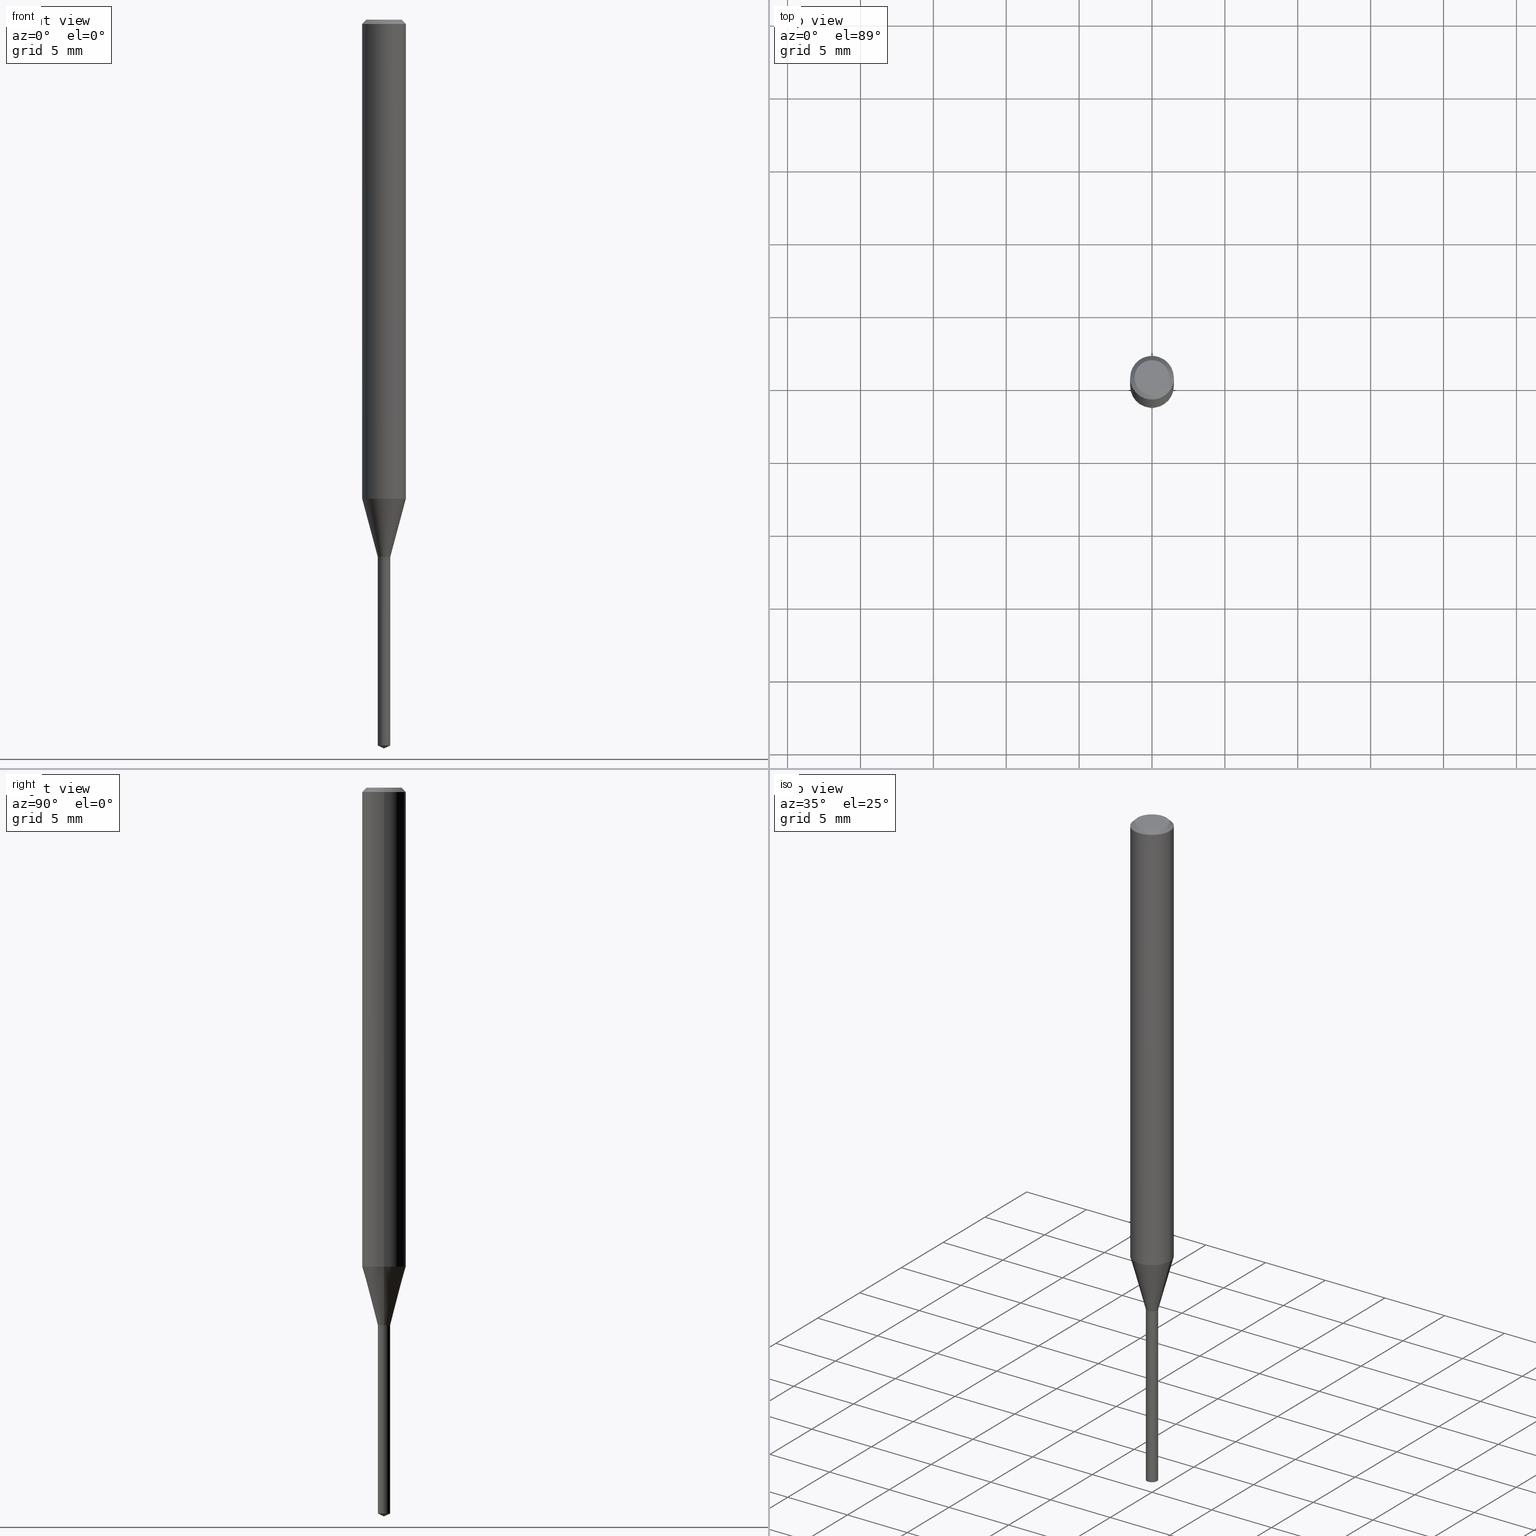
[diagram: canonical four-view strip — front | top / right | iso, engineering-drawing reading convention]
A machine part, canonical four-view strip (front | top / right | iso — engineering-drawing reading convention). The complete STEP part file that produces these views, byte-faithful:
ISO-10303-21;
HEADER;
FILE_DESCRIPTION (( 'STEP AP203' ),
    '1' );
FILE_NAME ('07463.STEP',
    '2024-04-23T21:43:20',
    ( '' ),
    ( '' ),
    'SwSTEP 2.0',
    'SolidWorks 2023',
    '' );
FILE_SCHEMA (( 'CONFIG_CONTROL_DESIGN' ));
ENDSEC;

DATA;
#1 = CARTESIAN_POINT ( 'NONE',  ( 3.562314409969888354E-29, -5.086040866292809657E-15, -1.456699999999999884 ) ) ;
#2 = APPROVAL_DATE_TIME ( #412, #70 ) ;
#3 = PRODUCT_DEFINITION_SHAPE ( 'NONE', 'NONE',  #370 ) ;
#4 = AXIS2_PLACEMENT_3D ( 'NONE', #34, #79, #190 ) ;
#5 = DIRECTION ( 'NONE',  ( 1.000000000000000000, -6.982962677686258033E-15, 0.000000000000000000 ) ) ;
#6 = CARTESIAN_POINT ( 'NONE',  ( -0.01675000000000000100, -4.967024958052992573E-15, -1.456699999999999884 ) ) ;
#7 = VERTEX_POINT ( 'NONE', #148 ) ;
#8 = FACE_OUTER_BOUND ( 'NONE', #213, .T. ) ;
#9 = VECTOR ( 'NONE', #57, 39.37007874015748143 ) ;
#10 = ORIENTED_EDGE ( 'NONE', *, *, #39, .F. ) ;
#11 = CARTESIAN_POINT ( 'NONE',  ( 3.561091675566796113E-29, -5.084295125623389731E-15, -1.456200000000000161 ) ) ;
#12 = DIRECTION ( 'NONE',  ( 2.445468806185136597E-29, -3.491481338843145583E-15, -1.000000000000000000 ) ) ;
#13 = ORIENTED_EDGE ( 'NONE', *, *, #221, .F. ) ;
#14 = EDGE_CURVE ( 'NONE', #389, #421, #406, .T. ) ;
#15 = ORIENTED_EDGE ( 'NONE', *, *, #29, .F. ) ;
#16 = LINE ( 'NONE', #364, #255 ) ;
#17 = AXIS2_PLACEMENT_3D ( 'NONE', #87, #267, #136 ) ;
#18 = ORIENTED_EDGE ( 'NONE', *, *, #397, .F. ) ;
#19 = PERSON_AND_ORGANIZATION ( #106, #405 ) ;
#20 = ORIENTED_EDGE ( 'NONE', *, *, #360, .F. ) ;
#21 = DIRECTION ( 'NONE',  ( 1.000000000000000000, -6.982962677686270655E-15, 0.000000000000000000 ) ) ;
#22 = CARTESIAN_POINT ( 'NONE',  ( 3.164031300802735254E-29, -4.517398142363389348E-15, -1.293834250839836386 ) ) ;
#23 = CC_DESIGN_PERSON_AND_ORGANIZATION_ASSIGNMENT ( #282, #209, ( #212 ) ) ;
#24 = ORIENTED_EDGE ( 'NONE', *, *, #160, .T. ) ;
#25 = DIRECTION ( 'NONE',  ( -2.445468806185136597E-29, 3.491481338843145583E-15, 1.000000000000000000 ) ) ;
#26 = AXIS2_PLACEMENT_3D ( 'NONE', #178, #173, #149 ) ;
#27 = CARTESIAN_POINT ( 'NONE',  ( -0.05905000000000008159, 4.195754854663397395E-16, -2.904631170795525745E-30 ) ) ;
#28 = DATE_AND_TIME ( #244, #205 ) ;
#29 = EDGE_CURVE ( 'NONE', #325, #163, #32, .T. ) ;
#30 = LINE ( 'NONE', #151, #320 ) ;
#31 = CONICAL_SURFACE ( 'NONE', #150, 0.05905000000000000526, 0.7853981633974453924 ) ;
#32 = CIRCLE ( 'NONE', #85, 0.01675000000000004610 ) ;
#33 = EDGE_CURVE ( 'NONE', #92, #434, #154, .T. ) ;
#34 = CARTESIAN_POINT ( 'NONE',  ( 3.562314409969888354E-29, -5.086040866292809657E-15, -1.456699999999999884 ) ) ;
#35 = CC_DESIGN_DATE_AND_TIME_ASSIGNMENT ( #459, #343, ( #370 ) ) ;
#36 = CARTESIAN_POINT ( 'NONE',  ( 0.01675000000000004263, -5.201259750474635203E-15, -1.456200000000000161 ) ) ;
#37 = APPLICATION_PROTOCOL_DEFINITION ( 'international standard', 'config_control_design', 1994, #449 ) ;
#38 = DIRECTION ( 'NONE',  ( -2.445468806185136597E-29, 3.491481338843145583E-15, 1.000000000000000000 ) ) ;
#39 = EDGE_CURVE ( 'NONE', #277, #434, #361, .T. ) ;
#40 = CARTESIAN_POINT ( 'NONE',  ( 0.05905000000000015098, -4.929742088480765058E-15, -1.293834250839836386 ) ) ;
#41 = DIRECTION ( 'NONE',  ( 1.000000000000000000, -6.982962677686266711E-15, 0.000000000000000000 ) ) ;
#42 = CARTESIAN_POINT ( 'NONE',  ( -0.01675000000000004610, 1.190159082398171087E-16, -8.239216276176990208E-31 ) ) ;
#43 = AXIS2_PLACEMENT_3D ( 'NONE', #58, #247, #356 ) ;
#44 = FACE_OUTER_BOUND ( 'NONE', #344, .T. ) ;
#45 = EDGE_CURVE ( 'NONE', #251, #134, #157, .T. ) ;
#46 = DIMENSIONAL_EXPONENTS ( 1.000000000000000000, 0.000000000000000000, 0.000000000000000000, 0.000000000000000000, 0.000000000000000000, 0.000000000000000000, 0.000000000000000000 ) ;
#47 = CARTESIAN_POINT ( 'NONE',  ( -0.04724000000000000421, 3.504923541997677355E-16, -3.380025165670481712E-19 ) ) ;
#48 = ORIENTED_EDGE ( 'NONE', *, *, #472, .T. ) ;
#49 = ORIENTED_EDGE ( 'NONE', *, *, #45, .T. ) ;
#50 = DIRECTION ( 'NONE',  ( 1.000000000000000000, -6.982962677686265922E-15, 4.876176775795935793E-29 ) ) ;
#51 = ADVANCED_FACE ( 'NONE', ( #222 ), #68, .T. ) ;
#52 = ORIENTED_EDGE ( 'NONE', *, *, #217, .F. ) ;
#53 = FACE_OUTER_BOUND ( 'NONE', #392, .T. ) ;
#54 = CONICAL_SURFACE ( 'NONE', #393, 0.01625000000000000056, 0.7853981633978645016 ) ;
#55 = ORIENTED_EDGE ( 'NONE', *, *, #289, .T. ) ;
#56 = CC_DESIGN_PERSON_AND_ORGANIZATION_ASSIGNMENT ( #19, #473, ( #351 ) ) ;
#57 = DIRECTION ( 'NONE',  ( -0.2588190451025211281, 5.211531920934548675E-15, 0.9659258262890682012 ) ) ;
#58 = CARTESIAN_POINT ( 'NONE',  ( 3.164031300802735254E-29, -4.517398142363389348E-15, -1.293834250839836386 ) ) ;
#59 = AXIS2_PLACEMENT_3D ( 'NONE', #223, #78, #71 ) ;
#60 = COORDINATED_UNIVERSAL_TIME_OFFSET ( 5, 0, .BEHIND. ) ;
#61 = DIRECTION ( 'NONE',  ( -2.445468806185136597E-29, 3.491481338843145583E-15, 1.000000000000000000 ) ) ;
#62 = DIRECTION ( 'NONE',  ( 1.000000000000000000, -6.982962677686265922E-15, 4.876176775795935793E-29 ) ) ;
#63 = FACE_OUTER_BOUND ( 'NONE', #427, .T. ) ;
#64 = EDGE_CURVE ( 'NONE', #348, #434, #423, .T. ) ;
#65 = AXIS2_PLACEMENT_3D ( 'NONE', #22, #254, #327 ) ;
#66 = LOCAL_TIME ( 17, 43, 20.00000000000000000, #117 ) ;
#67 = DIRECTION ( 'NONE',  ( -2.445468806185136877E-29, 3.491481338843145188E-15, 1.000000000000000000 ) ) ;
#68 = CONICAL_SURFACE ( 'NONE', #143, 0.01625000000000000056, 0.7853981633978645016 ) ;
#69 = MANIFOLD_SOLID_BREP ( 'Body-Move/Copy2[1]', #297 ) ;
#70 = APPROVAL ( #323, 'UNSPECIFIED' ) ;
#71 = DIRECTION ( 'NONE',  ( 1.000000000000000000, -6.982962677686266711E-15, 4.876185090822587894E-29 ) ) ;
#72 = PERSON_AND_ORGANIZATION_ROLE ( 'creator' ) ;
#73 = DIRECTION ( 'NONE',  ( 1.000000000000000000, -6.982962677686267499E-15, 4.876176775795936353E-29 ) ) ;
#74 = ADVANCED_FACE ( 'NONE', ( #8 ), #75, .T. ) ;
#75 = CYLINDRICAL_SURFACE ( 'NONE', #4, 0.01675000000000000100 ) ;
#76 = CONICAL_SURFACE ( 'NONE', #94, 0.01675000000000004610, 0.2617993877991497964 ) ;
#77 = CARTESIAN_POINT ( 'NONE',  ( 0.000000000000000000, 0.000000000000000000, 0.000000000000000000 ) ) ;
#78 = DIRECTION ( 'NONE',  ( -2.445468806185136597E-29, 3.491481338843145583E-15, 1.000000000000000000 ) ) ;
#79 = DIRECTION ( 'NONE',  ( -2.445468806185136597E-29, 3.491481338843145583E-15, 1.000000000000000000 ) ) ;
#80 = EDGE_LOOP ( 'NONE', ( #401, #208 ) ) ;
#81 = CARTESIAN_POINT ( 'NONE',  ( 0.01675000000000000100, -6.962674890213296059E-15, -1.960689346725903892 ) ) ;
#82 = AXIS2_PLACEMENT_3D ( 'NONE', #77, #376, #331 ) ;
#83 = LOCAL_TIME ( 17, 43, 20.00000000000000000, #426 ) ;
#84 = EDGE_LOOP ( 'NONE', ( #316, #172, #147, #206 ) ) ;
#85 = AXIS2_PLACEMENT_3D ( 'NONE', #321, #108, #488 ) ;
#86 = CARTESIAN_POINT ( 'NONE',  ( -0.01675000000000004610, -4.957423384371174698E-15, -1.451699999999999990 ) ) ;
#87 = CARTESIAN_POINT ( 'NONE',  ( 3.562314409969888354E-29, -5.086040866292809657E-15, -1.456699999999999884 ) ) ;
#88 = ORIENTED_EDGE ( 'NONE', *, *, #289, .F. ) ;
#89 = EDGE_LOOP ( 'NONE', ( #425, #403, #381 ) ) ;
#90 = DIRECTION ( 'NONE',  ( 2.445468806185136597E-29, -3.491481338843145583E-15, -1.000000000000000000 ) ) ;
#91 = EDGE_CURVE ( 'NONE', #7, #197, #185, .T. ) ;
#92 = VERTEX_POINT ( 'NONE', #378 ) ;
#93 = EDGE_LOOP ( 'NONE', ( #165, #95, #279, #246 ) ) ;
#94 = AXIS2_PLACEMENT_3D ( 'NONE', #422, #126, #21 ) ;
#95 = ORIENTED_EDGE ( 'NONE', *, *, #187, .T. ) ;
#96 =( GEOMETRIC_REPRESENTATION_CONTEXT ( 3 ) GLOBAL_UNCERTAINTY_ASSIGNED_CONTEXT ( ( #257 ) ) GLOBAL_UNIT_ASSIGNED_CONTEXT ( ( #252, #214, #179 ) ) REPRESENTATION_CONTEXT ( 'NONE', 'WORKASPACE' ) );
#97 = LINE ( 'NONE', #444, #458 ) ;
#98 = VECTOR ( 'NONE', #174, 39.37007874015748143 ) ;
#99 = ORIENTED_EDGE ( 'NONE', *, *, #441, .T. ) ;
#100 =( LENGTH_UNIT ( ) NAMED_UNIT ( * ) SI_UNIT ( $, .METRE. ) );
#101 = DIRECTION ( 'NONE',  ( 1.000000000000000000, -6.982962677686268288E-15, 0.000000000000000000 ) ) ;
#102 = CARTESIAN_POINT ( 'NONE',  ( 4.813905344975441835E-29, -6.872981015512731707E-15, -1.968500000000000139 ) ) ;
#103 = ADVANCED_FACE ( 'NONE', ( #409 ), #335, .T. ) ;
#104 = DIRECTION ( 'NONE',  ( 0.2588190451025211281, 1.565188264969623940E-15, 0.9659258262890682012 ) ) ;
#105 = APPROVAL ( #235, 'UNSPECIFIED' ) ;
#106 = PERSON ( 'UNSPECIFIED', 'UNSPECIFIED', 'UNSPECIFIED', ('UNSPECIFIED'), ('UNSPECIFIED'), ('UNSPECIFIED') ) ;
#107 = CYLINDRICAL_SURFACE ( 'NONE', #231, 0.01675000000000004610 ) ;
#108 = DIRECTION ( 'NONE',  ( -2.445468806185136597E-29, 3.491481338843145583E-15, 1.000000000000000000 ) ) ;
#109 = ADVANCED_FACE ( 'NONE', ( #489 ), #259, .F. ) ;
#110 = CARTESIAN_POINT ( 'NONE',  ( 3.561091675566796113E-29, -5.084295125623389731E-15, -1.456200000000000161 ) ) ;
#111 = APPROVAL ( #451, 'UNSPECIFIED' ) ;
#112 = APPROVAL_DATE_TIME ( #337, #111 ) ;
#113 = CONICAL_SURFACE ( 'NONE', #350, 0.01675000000000004610, 0.2617993877991497964 ) ;
#114 = DIRECTION ( 'NONE',  ( -2.438088387897960049E-29, 3.491481338843145188E-15, 1.000000000000000000 ) ) ;
#115 = CALENDAR_DATE ( 2024, 23, 4 ) ;
#116 = CARTESIAN_POINT ( 'NONE',  ( 4.813905344975441835E-29, -6.872981015512731707E-15, -1.968500000000000139 ) ) ;
#117 = COORDINATED_UNIVERSAL_TIME_OFFSET ( 5, 0, .BEHIND. ) ;
#118 = EDGE_CURVE ( 'NONE', #469, #348, #166, .T. ) ;
#119 = DIRECTION ( 'NONE',  ( -2.445468806185136597E-29, 3.491481338843145583E-15, 1.000000000000000000 ) ) ;
#120 = VECTOR ( 'NONE', #442, 39.37007874015748143 ) ;
#121 = CARTESIAN_POINT ( 'NONE',  ( 3.562314409969888354E-29, -5.086040866292809657E-15, -1.456699999999999884 ) ) ;
#122 = PERSON_AND_ORGANIZATION ( #106, #405 ) ;
#123 = CARTESIAN_POINT ( 'NONE',  ( 3.550087065938963142E-29, -5.068583459598594621E-15, -1.451699999999999990 ) ) ;
#124 = CARTESIAN_POINT ( 'NONE',  ( 0.000000000000000000, 0.000000000000000000, 0.000000000000000000 ) ) ;
#125 = VERTEX_POINT ( 'NONE', #155 ) ;
#126 = DIRECTION ( 'NONE',  ( -2.445468806185136597E-29, 3.491481338843145583E-15, 1.000000000000000000 ) ) ;
#127 = EDGE_CURVE ( 'NONE', #348, #469, #152, .T. ) ;
#128 = EDGE_LOOP ( 'NONE', ( #339, #48, #424 ) ) ;
#129 = FACE_OUTER_BOUND ( 'NONE', #84, .T. ) ;
#130 = DIRECTION ( 'NONE',  ( 0.7071067811868417818, -2.468850131085339140E-15, 0.7071067811862532526 ) ) ;
#131 = ORIENTED_EDGE ( 'NONE', *, *, #127, .T. ) ;
#132 = AXIS2_PLACEMENT_3D ( 'NONE', #258, #38, #156 ) ;
#133 = CARTESIAN_POINT ( 'NONE',  ( -0.01675000000000004263, -4.957423384371174698E-15, -1.456200000000000161 ) ) ;
#134 = VERTEX_POINT ( 'NONE', #36 ) ;
#135 = DIRECTION ( 'NONE',  ( -2.445468806185136597E-29, 3.491481338843145583E-15, 1.000000000000000000 ) ) ;
#136 = DIRECTION ( 'NONE',  ( 1.000000000000000000, -6.982962677686288799E-15, 0.000000000000000000 ) ) ;
#137 = PRODUCT_RELATED_PRODUCT_CATEGORY ( 'detail', '', ( #334 ) ) ;
#138 = VERTEX_POINT ( 'NONE', #40 ) ;
#139 = DIRECTION ( 'NONE',  ( 1.000000000000000000, -6.982962677686288799E-15, 0.000000000000000000 ) ) ;
#140 = ORIENTED_EDGE ( 'NONE', *, *, #490, .T. ) ;
#141 = AXIS2_PLACEMENT_3D ( 'NONE', #269, #12, #276 ) ;
#142 = DIRECTION ( 'NONE',  ( -2.445468806185136877E-29, 3.491481338843145188E-15, 1.000000000000000000 ) ) ;
#143 = AXIS2_PLACEMENT_3D ( 'NONE', #1, #455, #256 ) ;
#144 = ORIENTED_EDGE ( 'NONE', *, *, #293, .F. ) ;
#145 = EDGE_CURVE ( 'NONE', #197, #443, #186, .T. ) ;
#146 = CARTESIAN_POINT ( 'NONE',  ( 2.888098660104664642E-31, -4.123439461173780879E-17, -0.01181000000000007565 ) ) ;
#147 = ORIENTED_EDGE ( 'NONE', *, *, #64, .T. ) ;
#148 = CARTESIAN_POINT ( 'NONE',  ( 4.813905344975441835E-29, -6.872981015512731707E-15, -1.968500000000000139 ) ) ;
#149 = DIRECTION ( 'NONE',  ( -1.000000000000000000, 6.982962677686265922E-15, -4.876176775795935793E-29 ) ) ;
#150 = AXIS2_PLACEMENT_3D ( 'NONE', #203, #90, #264 ) ;
#151 = CARTESIAN_POINT ( 'NONE',  ( 0.01675000000000004610, -5.185548084449840093E-15, -1.451699999999999990 ) ) ;
#152 = CIRCLE ( 'NONE', #132, 0.04724000000000000421 ) ;
#153 = AXIS2_PLACEMENT_3D ( 'NONE', #452, #377, #338 ) ;
#154 = LINE ( 'NONE', #27, #352 ) ;
#155 = CARTESIAN_POINT ( 'NONE',  ( 0.01675000000000000100, -5.203005491144055129E-15, -1.456699999999999884 ) ) ;
#156 = DIRECTION ( 'NONE',  ( 1.000000000000000000, -6.982962677686266711E-15, 4.876185090822587894E-29 ) ) ;
#157 = CIRCLE ( 'NONE', #215, 0.01675000000000004263 ) ;
#158 = ADVANCED_FACE ( 'NONE', ( #294 ), #298, .T. ) ;
#159 = CARTESIAN_POINT ( 'NONE',  ( 0.01675000000000004610, -5.185548084449840093E-15, -1.451699999999999990 ) ) ;
#160 = EDGE_CURVE ( 'NONE', #421, #389, #291, .T. ) ;
#161 = FACE_OUTER_BOUND ( 'NONE', #89, .T. ) ;
#162 = CARTESIAN_POINT ( 'NONE',  ( 4.794804636037711308E-29, -6.845710265362052164E-15, -1.960689346725903892 ) ) ;
#163 = VERTEX_POINT ( 'NONE', #159 ) ;
#164 = CARTESIAN_POINT ( 'NONE',  ( 0.05905000000000008159, -4.123439461173746736E-16, 2.879382386107504424E-30 ) ) ;
#165 = ORIENTED_EDGE ( 'NONE', *, *, #145, .F. ) ;
#166 = CIRCLE ( 'NONE', #59, 0.04724000000000000421 ) ;
#167 = DATE_AND_TIME ( #192, #270 ) ;
#168 = ORIENTED_EDGE ( 'NONE', *, *, #14, .T. ) ;
#169 = AXIS2_PLACEMENT_3D ( 'NONE', #454, #371, #460 ) ;
#170 = DIRECTION ( 'NONE',  ( -2.445468806185136597E-29, 3.491481338843145583E-15, 1.000000000000000000 ) ) ;
#171 = PERSON_AND_ORGANIZATION_ROLE ( 'design_supplier' ) ;
#172 = ORIENTED_EDGE ( 'NONE', *, *, #127, .F. ) ;
#173 = DIRECTION ( 'NONE',  ( 2.438088387897960049E-29, -3.491481338843145188E-15, -1.000000000000000000 ) ) ;
#174 = DIRECTION ( 'NONE',  ( -0.7071067811868417818, 7.493145998871417545E-15, 0.7071067811862532526 ) ) ;
#175 = ORIENTED_EDGE ( 'NONE', *, *, #118, .T. ) ;
#176 = ADVANCED_FACE ( 'NONE', ( #415 ), #340, .T. ) ;
#177 = AXIS2_PLACEMENT_3D ( 'NONE', #431, #271, #386 ) ;
#178 = CARTESIAN_POINT ( 'NONE',  ( 4.132873053354867254E-48, -5.900647395337818946E-34, -1.690012582823346072E-19 ) ) ;
#179 =( NAMED_UNIT ( * ) SI_UNIT ( $, .STERADIAN. ) SOLID_ANGLE_UNIT ( ) );
#180 = ADVANCED_FACE ( 'NONE', ( #161 ), #220, .T. ) ;
#181 = CYLINDRICAL_SURFACE ( 'NONE', #484, 0.01675000000000000100 ) ;
#182 = AXIS2_PLACEMENT_3D ( 'NONE', #146, #317, #470 ) ;
#183 = CLOSED_SHELL ( 'NONE', ( #51, #342, #158, #268, #383, #366, #299, #176, #278, #445, #189, #292 ) ) ;
#184 = AXIS2_PLACEMENT_3D ( 'NONE', #121, #114, #262 ) ;
#185 = LINE ( 'NONE', #116, #272 ) ;
#186 = LINE ( 'NONE', #6, #418 ) ;
#187 = EDGE_CURVE ( 'NONE', #197, #202, #404, .T. ) ;
#188 = DIRECTION ( 'NONE',  ( -2.445468806185136597E-29, 3.491481338843145583E-15, 1.000000000000000000 ) ) ;
#189 = ADVANCED_FACE ( 'NONE', ( #456 ), #305, .F. ) ;
#190 = DIRECTION ( 'NONE',  ( 1.000000000000000000, -6.982962677686288799E-15, 0.000000000000000000 ) ) ;
#191 = CARTESIAN_POINT ( 'NONE',  ( 0.000000000000000000, 0.000000000000000000, 0.000000000000000000 ) ) ;
#192 = CALENDAR_DATE ( 2024, 23, 4 ) ;
#193 = FACE_OUTER_BOUND ( 'NONE', #432, .T. ) ;
#194 = AXIS2_PLACEMENT_3D ( 'NONE', #191, #411, #73 ) ;
#195 = VECTOR ( 'NONE', #420, 39.37007874015748143 ) ;
#196 = CALENDAR_DATE ( 2024, 23, 4 ) ;
#197 = VERTEX_POINT ( 'NONE', #468 ) ;
#198 = CARTESIAN_POINT ( 'NONE',  ( 0.01625000000000000056, -5.199514009805211333E-15, -1.456699999999999884 ) ) ;
#199 = LINE ( 'NONE', #466, #263 ) ;
#200 = DESIGN_CONTEXT ( 'detailed design', #471, 'design' ) ;
#201 = EDGE_CURVE ( 'NONE', #443, #125, #416, .T. ) ;
#202 = VERTEX_POINT ( 'NONE', #81 ) ;
#203 = CARTESIAN_POINT ( 'NONE',  ( 2.888098660104664642E-31, -4.123439461173780879E-17, -0.01181000000000007565 ) ) ;
#204 = VECTOR ( 'NONE', #390, 39.37007874015748143 ) ;
#205 = LOCAL_TIME ( 17, 43, 20.00000000000000000, #60 ) ;
#206 = ORIENTED_EDGE ( 'NONE', *, *, #453, .T. ) ;
#207 = CIRCLE ( 'NONE', #182, 0.05905000000000000526 ) ;
#208 = ORIENTED_EDGE ( 'NONE', *, *, #201, .T. ) ;
#209 = PERSON_AND_ORGANIZATION_ROLE ( 'classification_officer' ) ;
#210 = EDGE_LOOP ( 'NONE', ( #20, #49, #240, #15 ) ) ;
#211 = FACE_OUTER_BOUND ( 'NONE', #93, .T. ) ;
#212 = SECURITY_CLASSIFICATION ( '', '', #433 ) ;
#213 = EDGE_LOOP ( 'NONE', ( #307, #315, #13, #311 ) ) ;
#214 =( NAMED_UNIT ( * ) PLANE_ANGLE_UNIT ( ) SI_UNIT ( $, .RADIAN. ) );
#215 = AXIS2_PLACEMENT_3D ( 'NONE', #110, #25, #398 ) ;
#216 = EDGE_LOOP ( 'NONE', ( #463, #362 ) ) ;
#217 = EDGE_CURVE ( 'NONE', #389, #134, #384, .T. ) ;
#218 = PLANE ( 'NONE',  #26 ) ;
#219 = AXIS2_PLACEMENT_3D ( 'NONE', #124, #300, #224 ) ;
#220 = CONICAL_SURFACE ( 'NONE', #153, 84.42940631927572781, 1.134464013796322224 ) ;
#221 = EDGE_CURVE ( 'NONE', #125, #443, #284, .T. ) ;
#222 = FACE_OUTER_BOUND ( 'NONE', #387, .T. ) ;
#223 = CARTESIAN_POINT ( 'NONE',  ( 8.265746106709734507E-48, -1.180129479067563789E-33, -3.380025165646692144E-19 ) ) ;
#224 = DIRECTION ( 'NONE',  ( 1.000000000000000000, -6.982962677686267499E-15, 4.876176775795936353E-29 ) ) ;
#225 = AXIS2_PLACEMENT_3D ( 'NONE', #336, #188, #5 ) ;
#226 = EDGE_CURVE ( 'NONE', #469, #277, #199, .T. ) ;
#227 = DIRECTION ( 'NONE',  ( -2.445468806185136597E-29, 3.491481338843145583E-15, 1.000000000000000000 ) ) ;
#228 = APPROVAL_ROLE ( '' ) ;
#229 = FACE_OUTER_BOUND ( 'NONE', #210, .T. ) ;
#230 = ORIENTED_EDGE ( 'NONE', *, *, #379, .F. ) ;
#231 = AXIS2_PLACEMENT_3D ( 'NONE', #288, #326, #62 ) ;
#232 = CC_DESIGN_APPROVAL ( #70, ( #212 ) ) ;
#233 = EDGE_LOOP ( 'NONE', ( #313, #140, #18, #354 ) ) ;
#234 = DIRECTION ( 'NONE',  ( -2.445468806185136597E-29, 3.491481338843145583E-15, 1.000000000000000000 ) ) ;
#235 = APPROVAL_STATUS ( 'not_yet_approved' ) ;
#236 = ORIENTED_EDGE ( 'NONE', *, *, #45, .F. ) ;
#237 = CARTESIAN_POINT ( 'NONE',  ( 0.000000000000000000, 0.000000000000000000, 0.000000000000000000 ) ) ;
#238 = ORIENTED_EDGE ( 'NONE', *, *, #490, .F. ) ;
#239 = CIRCLE ( 'NONE', #43, 0.05905000000000015098 ) ;
#240 = ORIENTED_EDGE ( 'NONE', *, *, #374, .T. ) ;
#241 = AXIS2_PLACEMENT_3D ( 'NONE', #319, #285, #139 ) ;
#242 = CARTESIAN_POINT ( 'NONE',  ( -0.01675000000000004610, -4.949567551358777537E-15, -1.451699999999999990 ) ) ;
#243 = EDGE_LOOP ( 'NONE', ( #478, #462, #10, #88 ) ) ;
#244 = CALENDAR_DATE ( 2024, 23, 4 ) ;
#245 = CC_DESIGN_PERSON_AND_ORGANIZATION_ASSIGNMENT ( #368, #329, ( #334 ) ) ;
#246 = ORIENTED_EDGE ( 'NONE', *, *, #201, .F. ) ;
#247 = DIRECTION ( 'NONE',  ( -2.445468806185136597E-29, 3.491481338843145583E-15, 1.000000000000000000 ) ) ;
#248 = DIRECTION ( 'NONE',  ( 0.7071067811865454633, -7.319954787623248157E-15, -0.7071067811865495711 ) ) ;
#249 = ORIENTED_EDGE ( 'NONE', *, *, #448, .F. ) ;
#250 = CARTESIAN_POINT ( 'NONE',  ( 2.888098660104664642E-31, -4.123439461173780879E-17, -0.01181000000000007565 ) ) ;
#251 = VERTEX_POINT ( 'NONE', #133 ) ;
#252 =( CONVERSION_BASED_UNIT ( 'INCH', #399 ) LENGTH_UNIT ( ) NAMED_UNIT ( #46 ) );
#253 = AXIS2_PLACEMENT_3D ( 'NONE', #330, #119, #41 ) ;
#254 = DIRECTION ( 'NONE',  ( -2.445468806185136597E-29, 3.491481338843145583E-15, 1.000000000000000000 ) ) ;
#255 = VECTOR ( 'NONE', #396, 39.37007874015748143 ) ;
#256 = DIRECTION ( 'NONE',  ( 1.000000000000000000, -6.982962677686258033E-15, 0.000000000000000000 ) ) ;
#257 = UNCERTAINTY_MEASURE_WITH_UNIT (LENGTH_MEASURE( 1.000000000000000082E-05 ), #252, 'distance_accuracy_value', 'NONE');
#258 = CARTESIAN_POINT ( 'NONE',  ( 8.265746106709734507E-48, -1.180129479067563789E-33, -3.380025165646692144E-19 ) ) ;
#259 = PLANE ( 'NONE',  #169 ) ;
#260 = APPROVAL_ROLE ( '' ) ;
#261 = CIRCLE ( 'NONE', #306, 0.01675000000000004263 ) ;
#262 = DIRECTION ( 'NONE',  ( 1.000000000000000000, -6.982962677686265922E-15, 4.876176775795935793E-29 ) ) ;
#263 = VECTOR ( 'NONE', #248, 39.37007874015748143 ) ;
#264 = DIRECTION ( 'NONE',  ( -1.000000000000000000, 6.982962677686265922E-15, 0.000000000000000000 ) ) ;
#265 = CARTESIAN_POINT ( 'NONE',  ( -0.05905000000000000526, 3.711095515056362547E-16, -0.01181000000000007565 ) ) ;
#266 = ORIENTED_EDGE ( 'NONE', *, *, #360, .T. ) ;
#267 = DIRECTION ( 'NONE',  ( -2.445468806185136597E-29, 3.491481338843145583E-15, 1.000000000000000000 ) ) ;
#268 = ADVANCED_FACE ( 'NONE', ( #467 ), #76, .T. ) ;
#269 = CARTESIAN_POINT ( 'NONE',  ( 2.888098660104664642E-31, -4.123439461173780879E-17, -0.01181000000000007565 ) ) ;
#270 = LOCAL_TIME ( 17, 43, 20.00000000000000000, #388 ) ;
#271 = DIRECTION ( 'NONE',  ( -2.445468806185136597E-29, 3.491481338843145583E-15, 1.000000000000000000 ) ) ;
#272 = VECTOR ( 'NONE', #373, 39.37007874015748143 ) ;
#273 = ORIENTED_EDGE ( 'NONE', *, *, #226, .T. ) ;
#274 = CARTESIAN_POINT ( 'NONE',  ( 3.550087065938963142E-29, -5.068583459598594621E-15, -1.451699999999999990 ) ) ;
#275 = ORIENTED_EDGE ( 'NONE', *, *, #217, .T. ) ;
#276 = DIRECTION ( 'NONE',  ( -1.000000000000000000, 6.982962677686265922E-15, 0.000000000000000000 ) ) ;
#277 = VERTEX_POINT ( 'NONE', #312 ) ;
#278 = ADVANCED_FACE ( 'NONE', ( #129 ), #328, .T. ) ;
#279 = ORIENTED_EDGE ( 'NONE', *, *, #479, .T. ) ;
#280 = LINE ( 'NONE', #102, #120 ) ;
#281 = ORIENTED_EDGE ( 'NONE', *, *, #453, .F. ) ;
#282 = PERSON_AND_ORGANIZATION ( #106, #405 ) ;
#283 = ORIENTED_EDGE ( 'NONE', *, *, #64, .F. ) ;
#284 = CIRCLE ( 'NONE', #177, 0.01675000000000000100 ) ;
#285 = DIRECTION ( 'NONE',  ( -2.445468806185136597E-29, 3.491481338843145583E-15, 1.000000000000000000 ) ) ;
#286 = ORIENTED_EDGE ( 'NONE', *, *, #379, .T. ) ;
#287 = CARTESIAN_POINT ( 'NONE',  ( 3.562314409969888354E-29, -5.086040866292809657E-15, -1.456699999999999884 ) ) ;
#288 = CARTESIAN_POINT ( 'NONE',  ( 0.000000000000000000, 0.000000000000000000, 0.000000000000000000 ) ) ;
#289 = EDGE_CURVE ( 'NONE', #138, #277, #304, .T. ) ;
#290 = LINE ( 'NONE', #447, #98 ) ;
#291 = CIRCLE ( 'NONE', #225, 0.01625000000000000056 ) ;
#292 = ADVANCED_FACE ( 'NONE', ( #44 ), #54, .T. ) ;
#293 = EDGE_CURVE ( 'NONE', #163, #325, #436, .T. ) ;
#294 = FACE_OUTER_BOUND ( 'NONE', #243, .T. ) ;
#295 = APPROVAL_ROLE ( '' ) ;
#296 = MECHANICAL_CONTEXT ( 'NONE', #449, 'mechanical' ) ;
#297 = CLOSED_SHELL ( 'NONE', ( #74, #180, #103, #457, #109 ) ) ;
#298 = CYLINDRICAL_SURFACE ( 'NONE', #194, 0.05905000000000008159 ) ;
#299 = ADVANCED_FACE ( 'NONE', ( #193 ), #113, .T. ) ;
#300 = DIRECTION ( 'NONE',  ( -2.445468806185136597E-29, 3.491481338843145583E-15, 1.000000000000000000 ) ) ;
#301 = ADVANCED_BREP_SHAPE_REPRESENTATION ( '07463', ( #69, #408, #82 ), #96 ) ;
#302 = DIRECTION ( 'NONE',  ( 1.000000000000000000, -6.982962677686288799E-15, 0.000000000000000000 ) ) ;
#303 = VECTOR ( 'NONE', #130, 39.37007874015748143 ) ;
#304 = LINE ( 'NONE', #164, #419 ) ;
#305 = PLANE ( 'NONE',  #184 ) ;
#306 = AXIS2_PLACEMENT_3D ( 'NONE', #11, #234, #385 ) ;
#307 = ORIENTED_EDGE ( 'NONE', *, *, #464, .T. ) ;
#308 = DIRECTION ( 'NONE',  ( -2.445468806185136877E-29, 3.491481338843145188E-15, 1.000000000000000000 ) ) ;
#309 = ORIENTED_EDGE ( 'NONE', *, *, #347, .T. ) ;
#310 = DIRECTION ( 'NONE',  ( 1.000000000000000000, -6.982962677686270655E-15, 0.000000000000000000 ) ) ;
#311 = ORIENTED_EDGE ( 'NONE', *, *, #479, .F. ) ;
#312 = CARTESIAN_POINT ( 'NONE',  ( 0.05905000000000000526, -4.535783407291119586E-16, -0.01181000000000007565 ) ) ;
#313 = ORIENTED_EDGE ( 'NONE', *, *, #293, .T. ) ;
#314 = APPROVAL_DATE_TIME ( #167, #105 ) ;
#315 = ORIENTED_EDGE ( 'NONE', *, *, #145, .T. ) ;
#316 = ORIENTED_EDGE ( 'NONE', *, *, #226, .F. ) ;
#317 = DIRECTION ( 'NONE',  ( -2.445468806185136597E-29, 3.491481338843145583E-15, 1.000000000000000000 ) ) ;
#318 = PERSON_AND_ORGANIZATION ( #106, #405 ) ;
#319 = CARTESIAN_POINT ( 'NONE',  ( 4.794804636037711308E-29, -6.845710265362052164E-15, -1.960689346725903892 ) ) ;
#320 = VECTOR ( 'NONE', #104, 39.37007874015748143 ) ;
#321 = CARTESIAN_POINT ( 'NONE',  ( 3.550087065938963142E-29, -5.068583459598594621E-15, -1.451699999999999990 ) ) ;
#322 = APPROVAL_PERSON_ORGANIZATION ( #122, #105, #228 ) ;
#323 = APPROVAL_STATUS ( 'not_yet_approved' ) ;
#324 = CARTESIAN_POINT ( 'NONE',  ( 3.562314409969888354E-29, -5.086040866292809657E-15, -1.456699999999999884 ) ) ;
#325 = VERTEX_POINT ( 'NONE', #86 ) ;
#326 = DIRECTION ( 'NONE',  ( -2.445468806185136597E-29, 3.491481338843145583E-15, 1.000000000000000000 ) ) ;
#327 = DIRECTION ( 'NONE',  ( 1.000000000000000000, -6.982962677686271444E-15, 0.000000000000000000 ) ) ;
#328 = CONICAL_SURFACE ( 'NONE', #141, 0.05905000000000000526, 0.7853981633974453924 ) ;
#329 = PERSON_AND_ORGANIZATION_ROLE ( 'design_owner' ) ;
#330 = CARTESIAN_POINT ( 'NONE',  ( -9.146439411113230710E-28, 1.305869142145323662E-13, 37.40157874015748263 ) ) ;
#331 = DIRECTION ( 'NONE',  ( 1.000000000000000000, 0.000000000000000000, 0.000000000000000000 ) ) ;
#332 = DIRECTION ( 'NONE',  ( -2.445468806185136877E-29, 3.491481338843145188E-15, 1.000000000000000000 ) ) ;
#333 = CC_DESIGN_APPROVAL ( #105, ( #351 ) ) ;
#334 = PRODUCT ( '07463', '07463', '', ( #296 ) ) ;
#335 = CONICAL_SURFACE ( 'NONE', #253, 84.42940631927572781, 1.134464013796322224 ) ;
#336 = CARTESIAN_POINT ( 'NONE',  ( 3.562314409969888354E-29, -5.086040866292809657E-15, -1.456699999999999884 ) ) ;
#337 = DATE_AND_TIME ( #115, #375 ) ;
#338 = DIRECTION ( 'NONE',  ( 1.000000000000000000, -6.982962677686266711E-15, 0.000000000000000000 ) ) ;
#339 = ORIENTED_EDGE ( 'NONE', *, *, #91, .F. ) ;
#340 = CYLINDRICAL_SURFACE ( 'NONE', #219, 0.05905000000000008159 ) ;
#341 = ORIENTED_EDGE ( 'NONE', *, *, #29, .T. ) ;
#342 = ADVANCED_FACE ( 'NONE', ( #53 ), #31, .T. ) ;
#343 = DATE_TIME_ROLE ( 'creation_date' ) ;
#344 = EDGE_LOOP ( 'NONE', ( #249, #24, #275, #236 ) ) ;
#345 = DIRECTION ( 'NONE',  ( -2.445468806185136597E-29, 3.491481338843145583E-15, 1.000000000000000000 ) ) ;
#346 = LINE ( 'NONE', #42, #204 ) ;
#347 = EDGE_CURVE ( 'NONE', #134, #251, #261, .T. ) ;
#348 = VERTEX_POINT ( 'NONE', #47 ) ;
#349 = CYLINDRICAL_SURFACE ( 'NONE', #482, 0.01675000000000004610 ) ;
#350 = AXIS2_PLACEMENT_3D ( 'NONE', #274, #135, #430 ) ;
#351 = PRODUCT_DEFINITION_FORMATION_WITH_SPECIFIED_SOURCE ( 'ANY', '', #334, .NOT_KNOWN. ) ;
#352 = VECTOR ( 'NONE', #67, 39.37007874015748143 ) ;
#353 = AXIS2_PLACEMENT_3D ( 'NONE', #123, #170, #310 ) ;
#354 = ORIENTED_EDGE ( 'NONE', *, *, #441, .F. ) ;
#355 = ORIENTED_EDGE ( 'NONE', *, *, #33, .F. ) ;
#356 = DIRECTION ( 'NONE',  ( 1.000000000000000000, -6.982962677686271444E-15, 0.000000000000000000 ) ) ;
#357 = PERSON_AND_ORGANIZATION ( #106, #405 ) ;
#358 = DIRECTION ( 'NONE',  ( 1.000000000000000000, -6.982962677686288799E-15, 0.000000000000000000 ) ) ;
#359 = APPROVAL_PERSON_ORGANIZATION ( #407, #111, #260 ) ;
#360 = EDGE_CURVE ( 'NONE', #251, #325, #346, .T. ) ;
#361 = CIRCLE ( 'NONE', #438, 0.05905000000000000526 ) ;
#362 = ORIENTED_EDGE ( 'NONE', *, *, #160, .F. ) ;
#363 = CC_DESIGN_PERSON_AND_ORGANIZATION_ASSIGNMENT ( #410, #72, ( #370 ) ) ;
#364 = CARTESIAN_POINT ( 'NONE',  ( 0.01675000000000004610, -1.169646248512452751E-16, 8.167596099458215014E-31 ) ) ;
#365 = CALENDAR_DATE ( 2024, 23, 4 ) ;
#366 = ADVANCED_FACE ( 'NONE', ( #229 ), #349, .T. ) ;
#367 = FACE_OUTER_BOUND ( 'NONE', #437, .T. ) ;
#368 = PERSON_AND_ORGANIZATION ( #106, #405 ) ;
#369 = CIRCLE ( 'NONE', #65, 0.05905000000000015098 ) ;
#370 = PRODUCT_DEFINITION ( 'UNKNOWN', '', #351, #200 ) ;
#371 = DIRECTION ( 'NONE',  ( 2.438088387897960049E-29, -3.491481338843145188E-15, -1.000000000000000000 ) ) ;
#372 = SHAPE_DEFINITION_REPRESENTATION ( #3, #301 ) ;
#373 = DIRECTION ( 'NONE',  ( -0.9063077870366533784, 7.915267918739014631E-15, 0.4226182617406921693 ) ) ;
#374 = EDGE_CURVE ( 'NONE', #134, #163, #16, .T. ) ;
#375 = LOCAL_TIME ( 17, 43, 20.00000000000000000, #486 ) ;
#376 = DIRECTION ( 'NONE',  ( 0.000000000000000000, 0.000000000000000000, 1.000000000000000000 ) ) ;
#377 = DIRECTION ( 'NONE',  ( -2.445468806185136597E-29, 3.491481338843145583E-15, 1.000000000000000000 ) ) ;
#378 = CARTESIAN_POINT ( 'NONE',  ( -0.05905000000000015098, -4.097822656897049856E-15, -1.293834250839836386 ) ) ;
#379 = EDGE_CURVE ( 'NONE', #92, #138, #369, .T. ) ;
#380 = DIRECTION ( 'NONE',  ( -2.445468806185136597E-29, 3.491481338843145583E-15, 1.000000000000000000 ) ) ;
#381 = ORIENTED_EDGE ( 'NONE', *, *, #464, .F. ) ;
#382 = AXIS2_PLACEMENT_3D ( 'NONE', #162, #227, #302 ) ;
#383 = ADVANCED_FACE ( 'NONE', ( #367 ), #107, .T. ) ;
#384 = LINE ( 'NONE', #198, #303 ) ;
#385 = DIRECTION ( 'NONE',  ( 1.000000000000000000, -6.982962677686271444E-15, 0.000000000000000000 ) ) ;
#386 = DIRECTION ( 'NONE',  ( 1.000000000000000000, -6.982962677686288799E-15, 0.000000000000000000 ) ) ;
#387 = EDGE_LOOP ( 'NONE', ( #168, #461, #391, #52 ) ) ;
#388 = COORDINATED_UNIVERSAL_TIME_OFFSET ( 5, 0, .BEHIND. ) ;
#389 = VERTEX_POINT ( 'NONE', #474 ) ;
#390 = DIRECTION ( 'NONE',  ( -2.445468806185136877E-29, 3.491481338843145188E-15, 1.000000000000000000 ) ) ;
#391 = ORIENTED_EDGE ( 'NONE', *, *, #347, .F. ) ;
#392 = EDGE_LOOP ( 'NONE', ( #485, #273, #429, #283 ) ) ;
#393 = AXIS2_PLACEMENT_3D ( 'NONE', #428, #345, #465 ) ;
#394 = ORIENTED_EDGE ( 'NONE', *, *, #374, .F. ) ;
#395 = CARTESIAN_POINT ( 'NONE',  ( 0.04724000000000000421, -3.852183633974369838E-16, -3.380025165621689721E-19 ) ) ;
#396 = DIRECTION ( 'NONE',  ( -2.445468806185136877E-29, 3.491481338843145188E-15, 1.000000000000000000 ) ) ;
#397 = EDGE_CURVE ( 'NONE', #138, #92, #239, .T. ) ;
#398 = DIRECTION ( 'NONE',  ( 1.000000000000000000, -6.982962677686271444E-15, 0.000000000000000000 ) ) ;
#399 = LENGTH_MEASURE_WITH_UNIT ( LENGTH_MEASURE( 0.02539999999999999897 ), #100 );
#400 = CC_DESIGN_SECURITY_CLASSIFICATION ( #212, ( #351 ) ) ;
#401 = ORIENTED_EDGE ( 'NONE', *, *, #221, .T. ) ;
#402 = CARTESIAN_POINT ( 'NONE',  ( -0.05905000000000000526, -1.859740783021222468E-15, -0.01181000000000007565 ) ) ;
#403 = ORIENTED_EDGE ( 'NONE', *, *, #91, .T. ) ;
#404 = CIRCLE ( 'NONE', #382, 0.01675000000000000100 ) ;
#405 = ORGANIZATION ( 'UNSPECIFIED', 'UNSPECIFIED', '' ) ;
#406 = CIRCLE ( 'NONE', #475, 0.01625000000000000056 ) ;
#407 = PERSON_AND_ORGANIZATION ( #106, #405 ) ;
#408 = MANIFOLD_SOLID_BREP ( 'Body-Move/Copy2[2]', #183 ) ;
#409 = FACE_OUTER_BOUND ( 'NONE', #128, .T. ) ;
#410 = PERSON_AND_ORGANIZATION ( #106, #405 ) ;
#411 = DIRECTION ( 'NONE',  ( -2.445468806185136597E-29, 3.491481338843145583E-15, 1.000000000000000000 ) ) ;
#412 = DATE_AND_TIME ( #365, #66 ) ;
#413 = APPLICATION_PROTOCOL_DEFINITION ( 'international standard', 'config_control_design', 1994, #471 ) ;
#414 = CC_DESIGN_DATE_AND_TIME_ASSIGNMENT ( #28, #440, ( #212 ) ) ;
#415 = FACE_OUTER_BOUND ( 'NONE', #487, .T. ) ;
#416 = CIRCLE ( 'NONE', #17, 0.01675000000000000100 ) ;
#417 = CC_DESIGN_APPROVAL ( #111, ( #370 ) ) ;
#418 = VECTOR ( 'NONE', #332, 39.37007874015748143 ) ;
#419 = VECTOR ( 'NONE', #308, 39.37007874015748143 ) ;
#420 = DIRECTION ( 'NONE',  ( -0.7071067811865454633, 2.468850131082235367E-15, -0.7071067811865495711 ) ) ;
#421 = VERTEX_POINT ( 'NONE', #481 ) ;
#422 = CARTESIAN_POINT ( 'NONE',  ( 3.550087065938963142E-29, -5.068583459598594621E-15, -1.451699999999999990 ) ) ;
#423 = LINE ( 'NONE', #265, #195 ) ;
#424 = ORIENTED_EDGE ( 'NONE', *, *, #187, .F. ) ;
#425 = ORIENTED_EDGE ( 'NONE', *, *, #472, .F. ) ;
#426 = COORDINATED_UNIVERSAL_TIME_OFFSET ( 5, 0, .BEHIND. ) ;
#427 = EDGE_LOOP ( 'NONE', ( #131, #175 ) ) ;
#428 = CARTESIAN_POINT ( 'NONE',  ( 3.562314409969888354E-29, -5.086040866292809657E-15, -1.456699999999999884 ) ) ;
#429 = ORIENTED_EDGE ( 'NONE', *, *, #39, .T. ) ;
#430 = DIRECTION ( 'NONE',  ( 1.000000000000000000, -6.982962677686270655E-15, 0.000000000000000000 ) ) ;
#431 = CARTESIAN_POINT ( 'NONE',  ( 3.562314409969888354E-29, -5.086040866292809657E-15, -1.456699999999999884 ) ) ;
#432 = EDGE_LOOP ( 'NONE', ( #238, #341, #99, #230 ) ) ;
#433 = SECURITY_CLASSIFICATION_LEVEL ( 'unclassified' ) ;
#434 = VERTEX_POINT ( 'NONE', #402 ) ;
#435 = CARTESIAN_POINT ( 'NONE',  ( -0.01675000000000000100, -5.846859657587614221E-15, -1.456699999999999884 ) ) ;
#436 = CIRCLE ( 'NONE', #353, 0.01675000000000004610 ) ;
#437 = EDGE_LOOP ( 'NONE', ( #309, #266, #144, #394 ) ) ;
#438 = AXIS2_PLACEMENT_3D ( 'NONE', #250, #450, #101 ) ;
#439 = CIRCLE ( 'NONE', #241, 0.01675000000000000100 ) ;
#440 = DATE_TIME_ROLE ( 'classification_date' ) ;
#441 = EDGE_CURVE ( 'NONE', #163, #138, #30, .T. ) ;
#442 = DIRECTION ( 'NONE',  ( 0.9063077870366533784, -4.853149677051428488E-15, 0.4226182617406921693 ) ) ;
#443 = VERTEX_POINT ( 'NONE', #435 ) ;
#444 = CARTESIAN_POINT ( 'NONE',  ( 0.01675000000000000100, -5.203005491144055129E-15, -1.456699999999999884 ) ) ;
#445 = ADVANCED_FACE ( 'NONE', ( #63 ), #218, .F. ) ;
#446 = DIRECTION ( 'NONE',  ( 1.000000000000000000, -6.982962677686258033E-15, 0.000000000000000000 ) ) ;
#447 = CARTESIAN_POINT ( 'NONE',  ( -0.01625000000000000056, -4.970577671731793471E-15, -1.456699999999999884 ) ) ;
#448 = EDGE_CURVE ( 'NONE', #421, #251, #290, .T. ) ;
#449 = APPLICATION_CONTEXT ( 'configuration controlled 3d designs of mechanical parts and assemblies' ) ;
#450 = DIRECTION ( 'NONE',  ( -2.445468806185136597E-29, 3.491481338843145583E-15, 1.000000000000000000 ) ) ;
#451 = APPROVAL_STATUS ( 'not_yet_approved' ) ;
#452 = CARTESIAN_POINT ( 'NONE',  ( -9.146439411113230710E-28, 1.305869142145323662E-13, 37.40157874015748263 ) ) ;
#453 = EDGE_CURVE ( 'NONE', #434, #277, #207, .T. ) ;
#454 = CARTESIAN_POINT ( 'NONE',  ( 3.562314409969888354E-29, -5.086040866292809657E-15, -1.456699999999999884 ) ) ;
#455 = DIRECTION ( 'NONE',  ( -2.445468806185136597E-29, 3.491481338843145583E-15, 1.000000000000000000 ) ) ;
#456 = FACE_OUTER_BOUND ( 'NONE', #216, .T. ) ;
#457 = ADVANCED_FACE ( 'NONE', ( #211 ), #181, .T. ) ;
#458 = VECTOR ( 'NONE', #142, 39.37007874015748143 ) ;
#459 = DATE_AND_TIME ( #196, #83 ) ;
#460 = DIRECTION ( 'NONE',  ( -1.000000000000000000, 6.982962677686265922E-15, -4.876176775795935793E-29 ) ) ;
#461 = ORIENTED_EDGE ( 'NONE', *, *, #448, .T. ) ;
#462 = ORIENTED_EDGE ( 'NONE', *, *, #33, .T. ) ;
#463 = ORIENTED_EDGE ( 'NONE', *, *, #14, .F. ) ;
#464 = EDGE_CURVE ( 'NONE', #202, #197, #439, .T. ) ;
#465 = DIRECTION ( 'NONE',  ( 1.000000000000000000, -6.982962677686258033E-15, 0.000000000000000000 ) ) ;
#466 = CARTESIAN_POINT ( 'NONE',  ( 0.05905000000000000526, -4.463468013801467941E-16, -0.01181000000000007565 ) ) ;
#467 = FACE_OUTER_BOUND ( 'NONE', #233, .T. ) ;
#468 = CARTESIAN_POINT ( 'NONE',  ( -0.01675000000000000100, -6.726694357122235080E-15, -1.960689346725903892 ) ) ;
#469 = VERTEX_POINT ( 'NONE', #395 ) ;
#470 = DIRECTION ( 'NONE',  ( 1.000000000000000000, -6.982962677686268288E-15, 0.000000000000000000 ) ) ;
#471 = APPLICATION_CONTEXT ( 'configuration controlled 3d designs of mechanical parts and assemblies' ) ;
#472 = EDGE_CURVE ( 'NONE', #7, #202, #280, .T. ) ;
#473 = PERSON_AND_ORGANIZATION_ROLE ( 'creator' ) ;
#474 = CARTESIAN_POINT ( 'NONE',  ( 0.01625000000000000056, -5.199514009805211333E-15, -1.456699999999999884 ) ) ;
#475 = AXIS2_PLACEMENT_3D ( 'NONE', #287, #61, #446 ) ;
#476 = CC_DESIGN_PERSON_AND_ORGANIZATION_ASSIGNMENT ( #318, #171, ( #351 ) ) ;
#477 = LINE ( 'NONE', #242, #9 ) ;
#478 = ORIENTED_EDGE ( 'NONE', *, *, #397, .T. ) ;
#479 = EDGE_CURVE ( 'NONE', #202, #125, #97, .T. ) ;
#480 = DIRECTION ( 'NONE',  ( -2.445468806185136597E-29, 3.491481338843145583E-15, 1.000000000000000000 ) ) ;
#481 = CARTESIAN_POINT ( 'NONE',  ( -0.01625000000000000056, -4.967928444557683848E-15, -1.456699999999999884 ) ) ;
#482 = AXIS2_PLACEMENT_3D ( 'NONE', #237, #380, #50 ) ;
#483 = APPROVAL_PERSON_ORGANIZATION ( #357, #70, #295 ) ;
#484 = AXIS2_PLACEMENT_3D ( 'NONE', #324, #480, #358 ) ;
#485 = ORIENTED_EDGE ( 'NONE', *, *, #118, .F. ) ;
#486 = COORDINATED_UNIVERSAL_TIME_OFFSET ( 5, 0, .BEHIND. ) ;
#487 = EDGE_LOOP ( 'NONE', ( #355, #286, #55, #281 ) ) ;
#488 = DIRECTION ( 'NONE',  ( 1.000000000000000000, -6.982962677686270655E-15, 0.000000000000000000 ) ) ;
#489 = FACE_OUTER_BOUND ( 'NONE', #80, .T. ) ;
#490 = EDGE_CURVE ( 'NONE', #325, #92, #477, .T. ) ;
ENDSEC;
END-ISO-10303-21;
